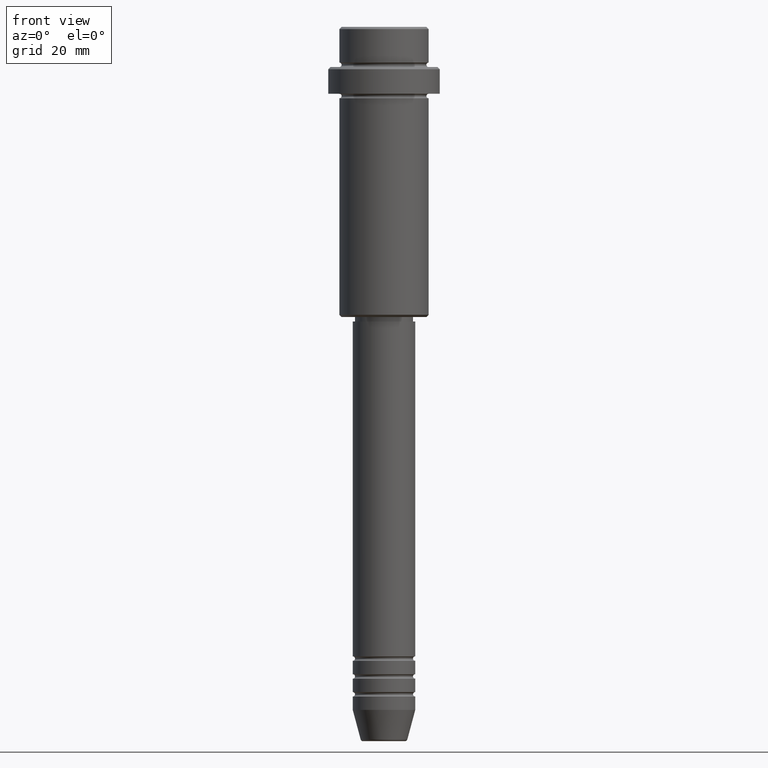
[diagram: clean part render]
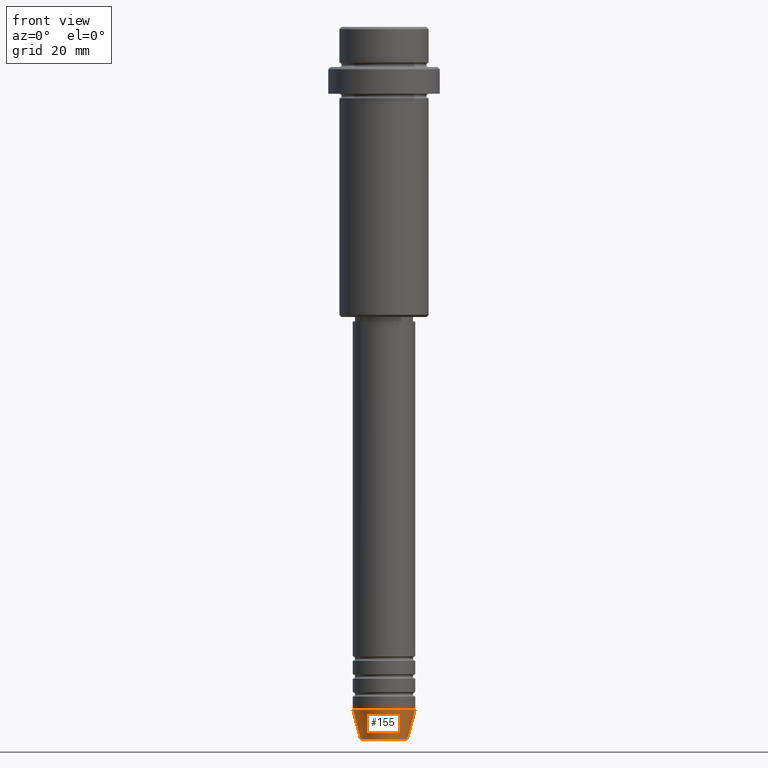
[diagram: same view with one face highlighted and labeled with its STEP entity id]
A machine part, front view. The second image highlights one B-rep face of the part: STEP entity #155.
In plain terms, the highlighted conical surface has half-angle 15 deg.
Its self-contained STEP definition (entity closure, byte-faithful):
#24 = CARTESIAN_POINT ( 'NONE',  ( 5.223655072137191269, 0.000000000000000000, -159.6294095225512422 ) ) ;
#64 = CIRCLE ( 'NONE', #111, 5.223655072137191269 ) ;
#71 = FACE_OUTER_BOUND ( 'NONE', #832, .T. ) ;
#84 = EDGE_CURVE ( 'NONE', #196, #427, #64, .T. ) ;
#111 = AXIS2_PLACEMENT_3D ( 'NONE', #1364, #160, #1253 ) ;
#133 = DIRECTION ( 'NONE',  ( -0.000000000000000000, -0.000000000000000000, 1.000000000000000000 ) ) ;
#148 = DIRECTION ( 'NONE',  ( 0.2588190451025214056, 0.000000000000000000, 0.9659258262890680902 ) ) ;
#155 = ADVANCED_FACE ( 'NONE', ( #71 ), #1193, .T. ) ;
#160 = DIRECTION ( 'NONE',  ( -0.000000000000000000, -0.000000000000000000, 1.000000000000000000 ) ) ;
#173 = DIRECTION ( 'NONE',  ( -0.000000000000000000, -0.000000000000000000, 1.000000000000000000 ) ) ;
#196 = VERTEX_POINT ( 'NONE', #414 ) ;
#358 = CIRCLE ( 'NONE', #1162, 7.000000000000000000 ) ;
#369 = ORIENTED_EDGE ( 'NONE', *, *, #1262, .T. ) ;
#414 = CARTESIAN_POINT ( 'NONE',  ( -5.223655072137191269, 7.484830028987061160E-16, -159.6294095225512422 ) ) ;
#427 = VERTEX_POINT ( 'NONE', #24 ) ;
#461 = VECTOR ( 'NONE', #1131, 1000.000000000000000 ) ;
#560 = DIRECTION ( 'NONE',  ( 1.000000000000000000, 0.000000000000000000, 0.000000000000000000 ) ) ;
#580 = ORIENTED_EDGE ( 'NONE', *, *, #84, .T. ) ;
#581 = CARTESIAN_POINT ( 'NONE',  ( 0.000000000000000000, 0.000000000000000000, -153.0000000000000000 ) ) ;
#650 = ORIENTED_EDGE ( 'NONE', *, *, #1270, .F. ) ;
#803 = LINE ( 'NONE', #911, #931 ) ;
#815 = DIRECTION ( 'NONE',  ( 1.000000000000000000, 0.000000000000000000, 0.000000000000000000 ) ) ;
#832 = EDGE_LOOP ( 'NONE', ( #1025, #580, #369, #650 ) ) ;
#911 = CARTESIAN_POINT ( 'NONE',  ( 7.000000000000000000, 0.000000000000000000, -153.0000000000000000 ) ) ;
#931 = VECTOR ( 'NONE', #148, 1000.000000000000000 ) ;
#977 = CARTESIAN_POINT ( 'NONE',  ( -7.000000000000000000, 8.572527594031473190E-16, -153.0000000000000000 ) ) ;
#1024 = CARTESIAN_POINT ( 'NONE',  ( 7.000000000000000000, 0.000000000000000000, -153.0000000000000000 ) ) ;
#1025 = ORIENTED_EDGE ( 'NONE', *, *, #1373, .F. ) ;
#1034 = CARTESIAN_POINT ( 'NONE',  ( 0.000000000000000000, 0.000000000000000000, -153.0000000000000000 ) ) ;
#1122 = CARTESIAN_POINT ( 'NONE',  ( -7.000000000000000000, 8.572527594031473190E-16, -153.0000000000000000 ) ) ;
#1131 = DIRECTION ( 'NONE',  ( -0.2588190451025214056, 3.169619151431772953E-17, 0.9659258262890680902 ) ) ;
#1162 = AXIS2_PLACEMENT_3D ( 'NONE', #581, #133, #560 ) ;
#1179 = VERTEX_POINT ( 'NONE', #977 ) ;
#1193 = CONICAL_SURFACE ( 'NONE', #1370, 7.000000000000000000, 0.2617993877991501295 ) ;
#1228 = LINE ( 'NONE', #1122, #461 ) ;
#1253 = DIRECTION ( 'NONE',  ( 1.000000000000000000, 0.000000000000000000, 0.000000000000000000 ) ) ;
#1262 = EDGE_CURVE ( 'NONE', #427, #1303, #803, .T. ) ;
#1270 = EDGE_CURVE ( 'NONE', #1179, #1303, #358, .T. ) ;
#1303 = VERTEX_POINT ( 'NONE', #1024 ) ;
#1364 = CARTESIAN_POINT ( 'NONE',  ( 0.000000000000000000, 0.000000000000000000, -159.6294095225512422 ) ) ;
#1370 = AXIS2_PLACEMENT_3D ( 'NONE', #1034, #173, #815 ) ;
#1373 = EDGE_CURVE ( 'NONE', #196, #1179, #1228, .T. ) ;